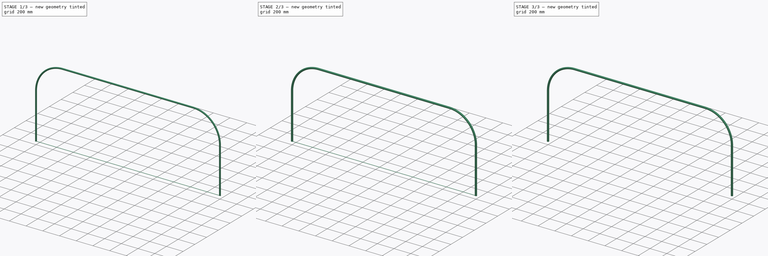
[diagram: build sequence overview — one tinted view per stage of 3, left to right]
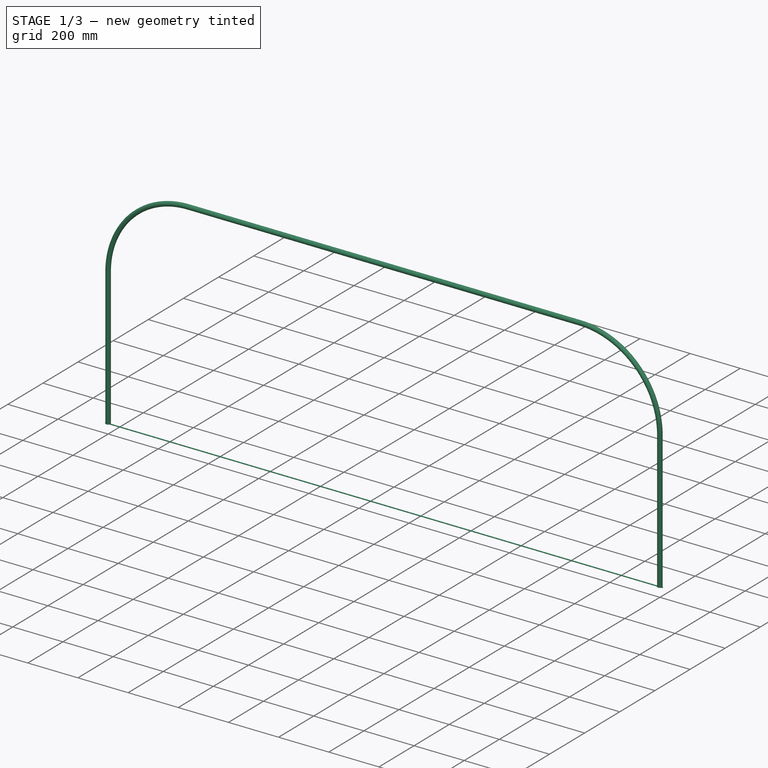
[diagram: stage 1 of 3 — iso view after this stage's code; geometry added in this stage tinted green]
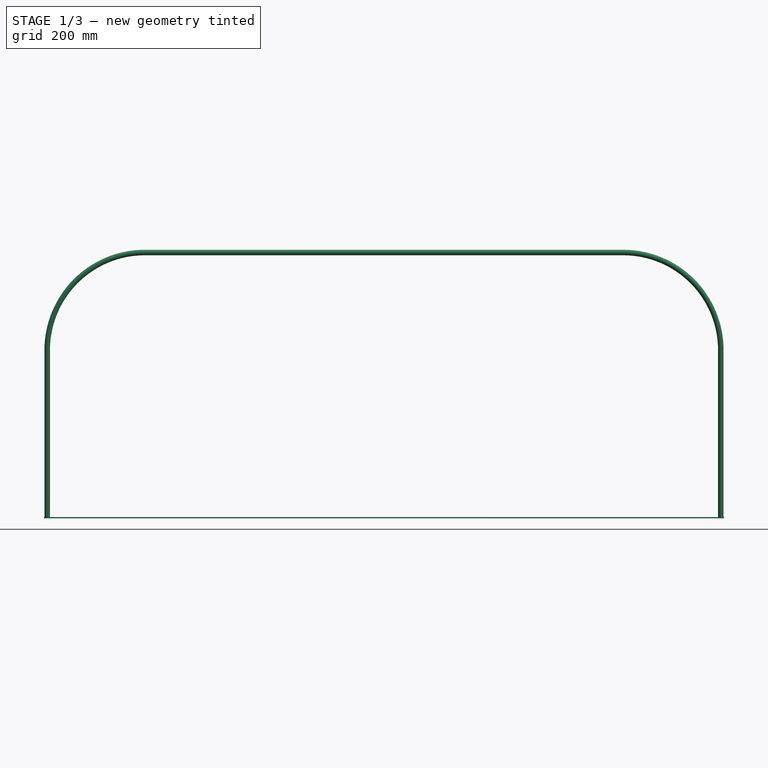
[diagram: stage 1 of 3 — front view after this stage's code; geometry added in this stage tinted green]
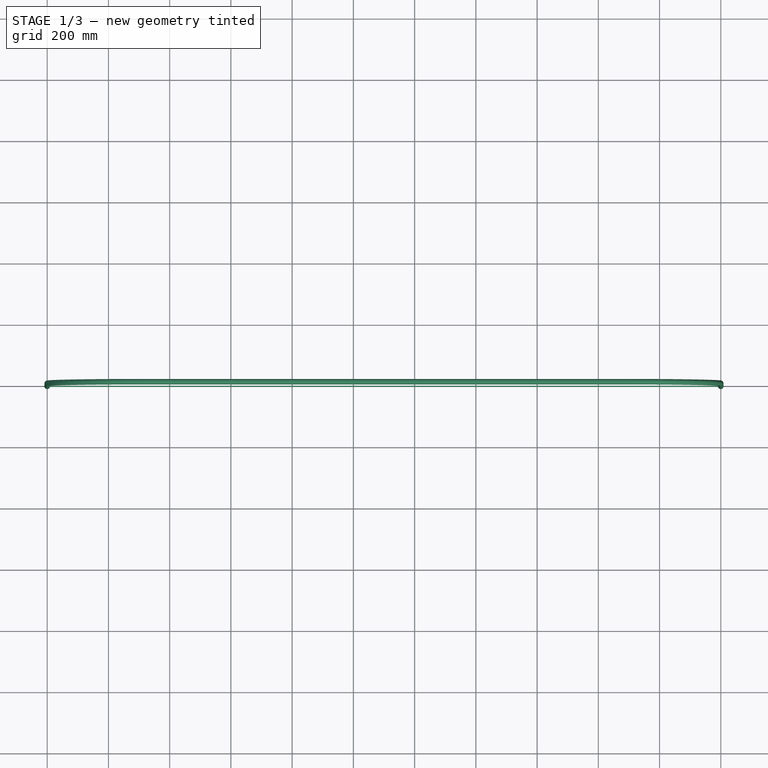
[diagram: stage 1 of 3 — top view after this stage's code; geometry added in this stage tinted green]
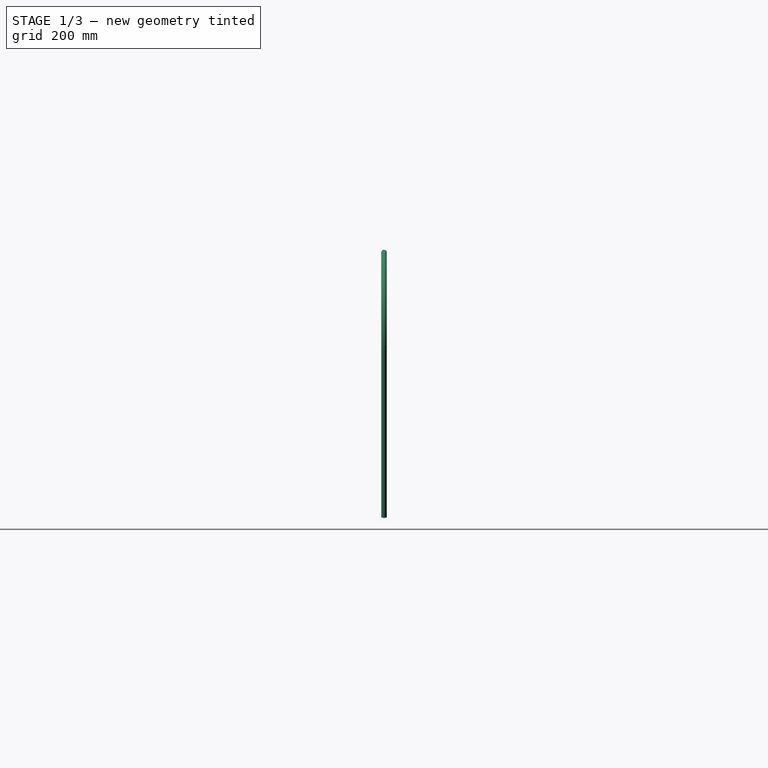
[diagram: stage 1 of 3 — right view after this stage's code; geometry added in this stage tinted green]
FCSTD DOCUMENT  (FreeCAD 0.18.3R)
Label: frame
License: All rights reserved
LicenseURL: http://en.wikipedia.org/wiki/All_rights_reserved
objects: Part::FeaturePython×2, Part::Cut×2, App::Part×1, Sketcher::SketchObject×1, Part::Cylinder×1, PartDesign::FeatureBase×1, PartDesign::Body×1
note: 8 computed .brp shape members not serialized (recipe doc carries the construction recipe); baked Part::Feature solids carry a one-line shape summary decoded from their .brp

FEATURE [Part::FeaturePython] Pipe002  label="Pipe"  # Arch/BIM object (typed FeaturePython)
  Base = -> Sketch
  Diameter = 18
  HorizontalArea = 0
  IfcRole = 98
  Length = 3658.56
  MoveWithHost = false
  OffsetEnd = 0
  OffsetStart = 0
  PerimeterLength = 0
  VerticalArea = 0
FEATURE [Part::Cylinder] Cylinder
  Angle = 360
  AttacherType = Attacher::AttachEngine3D
  Height = 2222
  Placement = pos=(-11,0,0) rot=(0,1,0;1.5708rad)
  Radius = 2
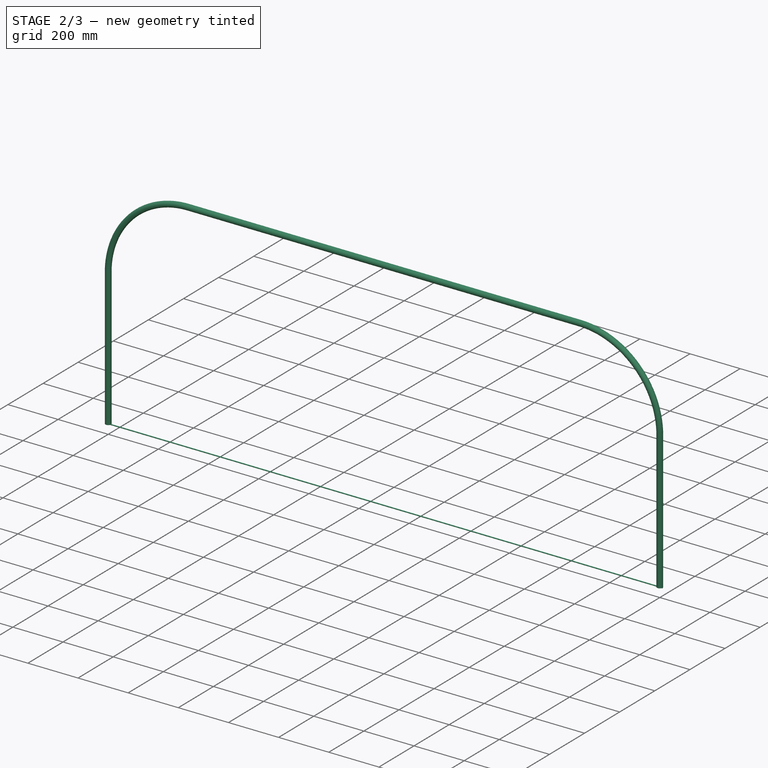
[diagram: stage 2 of 3 — iso view after this stage's code; geometry added in this stage tinted green]
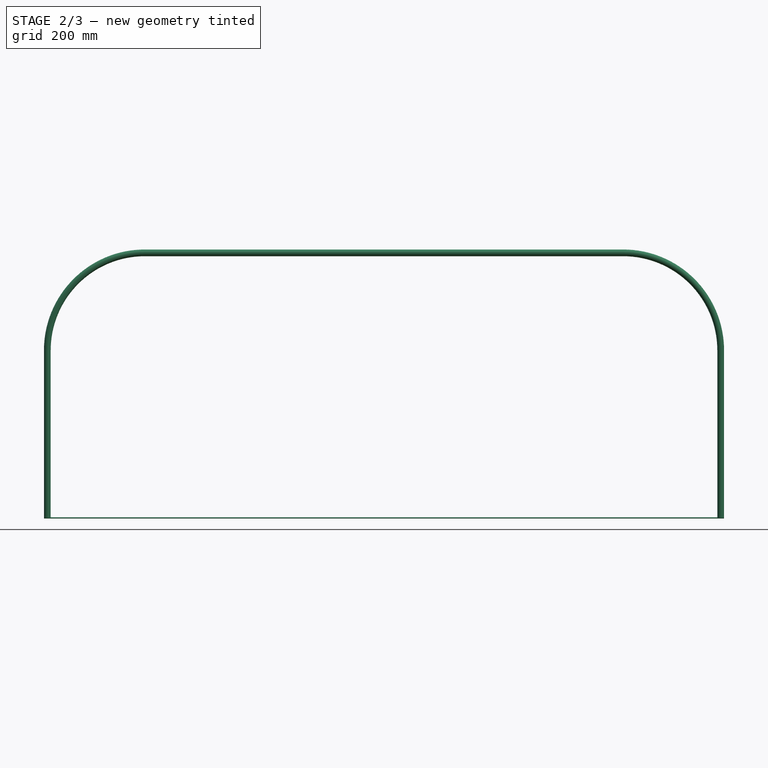
[diagram: stage 2 of 3 — front view after this stage's code; geometry added in this stage tinted green]
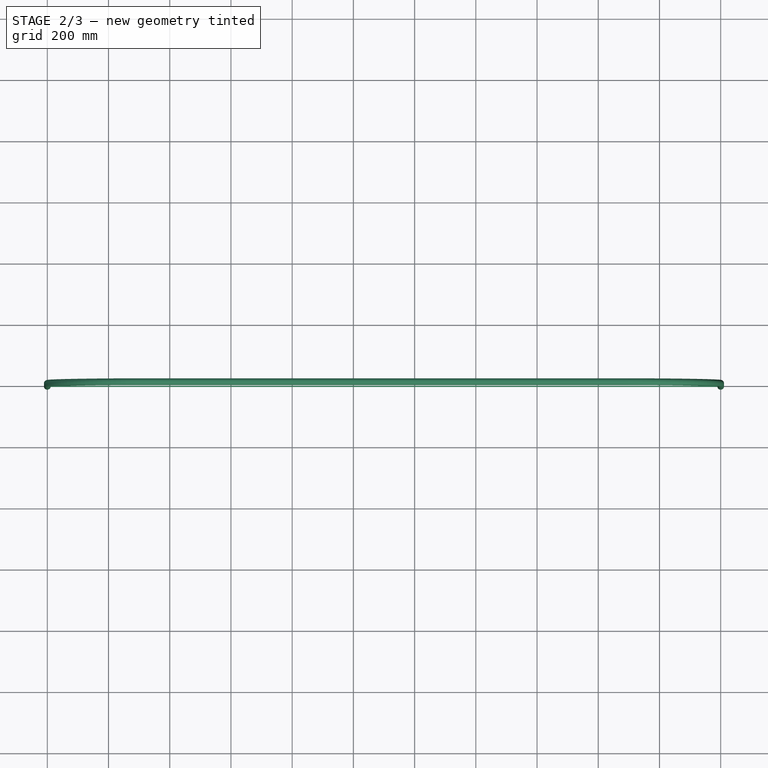
[diagram: stage 2 of 3 — top view after this stage's code; geometry added in this stage tinted green]
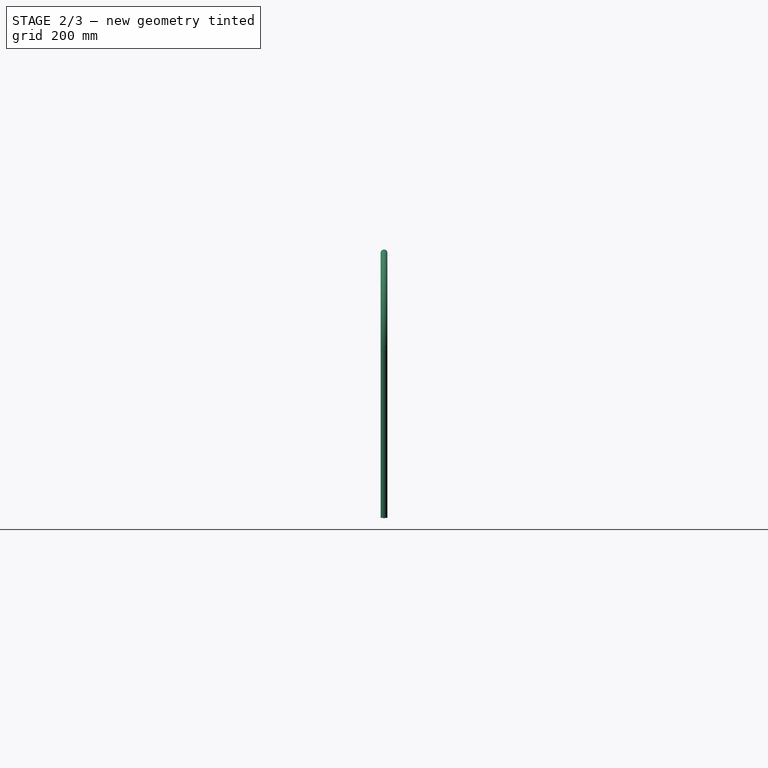
[diagram: stage 2 of 3 — right view after this stage's code; geometry added in this stage tinted green]
FEATURE [App::Part] Part
  Origin = -> Origin
FEATURE [Sketcher::SketchObject] Sketch
  MapMode = 5
  Placement = pos=(0,0,0) rot=(1,0,0;1.5708rad)
  Support = -> [XZ_Plane001]
  sketch-geometry (7):
    g0: LineSegment StartX=0 StartY=0 StartZ=0 EndX=0 EndY=547.423 EndZ=0
    g1: ArcOfCircle CenterX=318.602 CenterY=547.423 CenterZ=0 NormalX=0 NormalY=0 NormalZ=1 AngleXU=0 Radius=318.602 StartAngle=1.5708 EndAngle=3.14159
    g2: LineSegment [constr] StartX=318.602 StartY=866.025 StartZ=0 EndX=1100 EndY=866.025 EndZ=0
    g3: LineSegment [constr] StartX=1100 StartY=866.025 StartZ=0 EndX=1881.4 EndY=866.025 EndZ=0
    g4: LineSegment StartX=2200 StartY=547.423 StartZ=0 EndX=2200 EndY=0 EndZ=0
    g5: ArcOfCircle CenterX=1881.4 CenterY=547.423 CenterZ=0 NormalX=0 NormalY=0 NormalZ=1 AngleXU=0 Radius=318.602 StartAngle=0 EndAngle=1.5708
    g6: LineSegment StartX=318.602 StartY=866.025 StartZ=0 EndX=1881.4 EndY=866.025 EndZ=0
  constraints (17):
    c: Tangent(g0,g1) = 1.5708
    c: Vertical(g0)
    c: Tangent(g1,g2) = 1.5708
    c: Distance(g0,g2) = 1400  'size'
    c: Horizontal(g2)
    c: Coincident(g0,g-1)
    c: Coincident(g3,g2)
    c: Horizontal(g3)
    c: Vertical(g4)
    c: DistanceY(g0,g4) = 0
    c: Tangent(g3,g5) = 1.5708
    c: Tangent(g4,g5) = 1.5708
    c: Equal(g5,g1)
    c: Equal(g3,g2)
    c: Coincident(g6,g1)
    c: Coincident(g6,g5)
    c: Distance(g4,g0) = 2200
FEATURE [Part::FeaturePython] Pipe  label="PipeLeft"  # Arch/BIM object (typed FeaturePython)
  Base = -> Sketch
  Diameter = 22
  HorizontalArea = 0
  IfcRole = 98
  Length = 3658.56
  MoveWithHost = false
  OffsetEnd = 0
  OffsetStart = 0
  PerimeterLength = 0
  VerticalArea = 0
FEATURE [Part::Cut] Cut
  Base = -> Pipe
  Tool = -> Pipe002
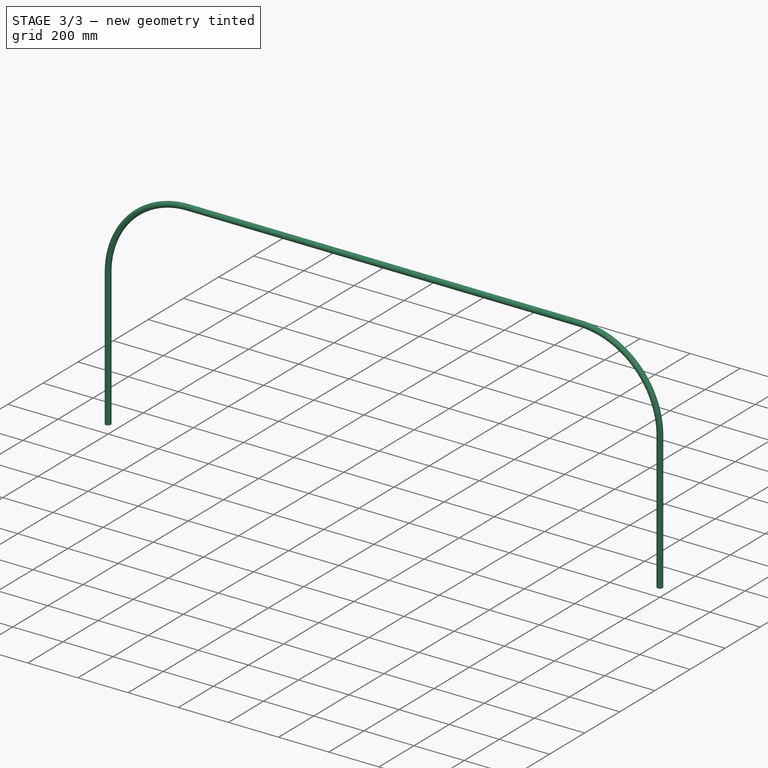
[diagram: stage 3 of 3 — iso view after this stage's code; geometry added in this stage tinted green]
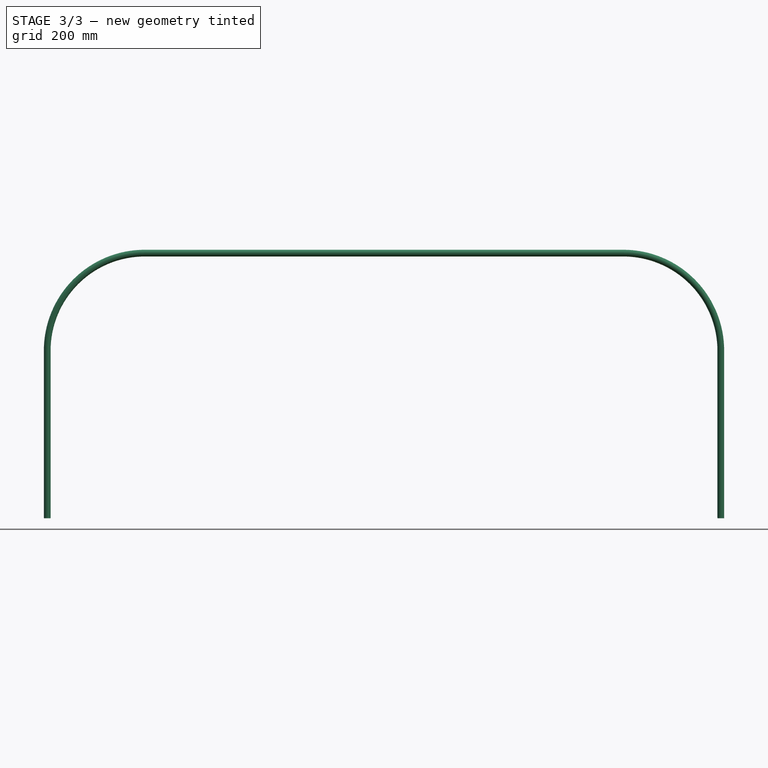
[diagram: stage 3 of 3 — front view after this stage's code; geometry added in this stage tinted green]
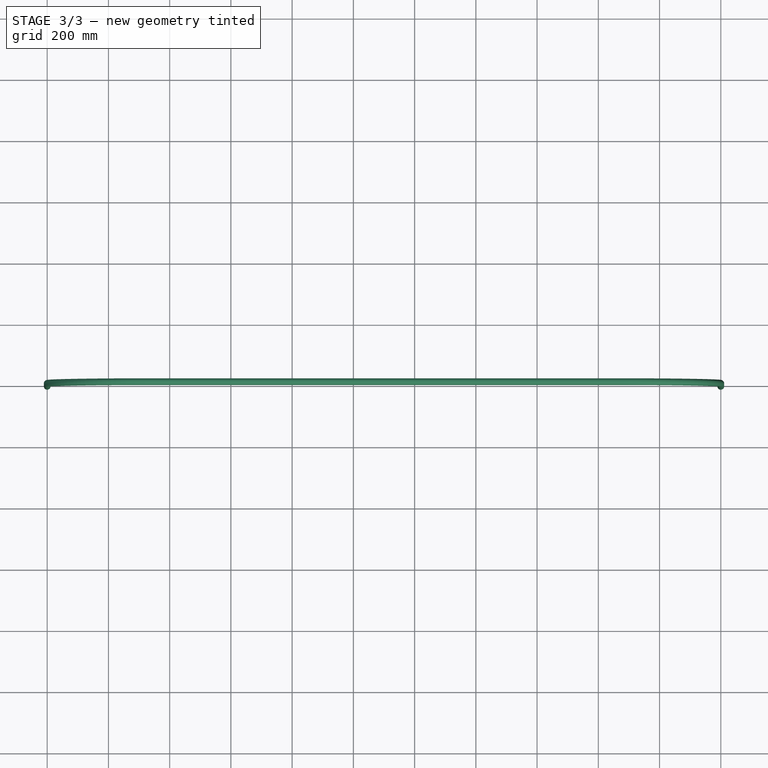
[diagram: stage 3 of 3 — top view after this stage's code; geometry added in this stage tinted green]
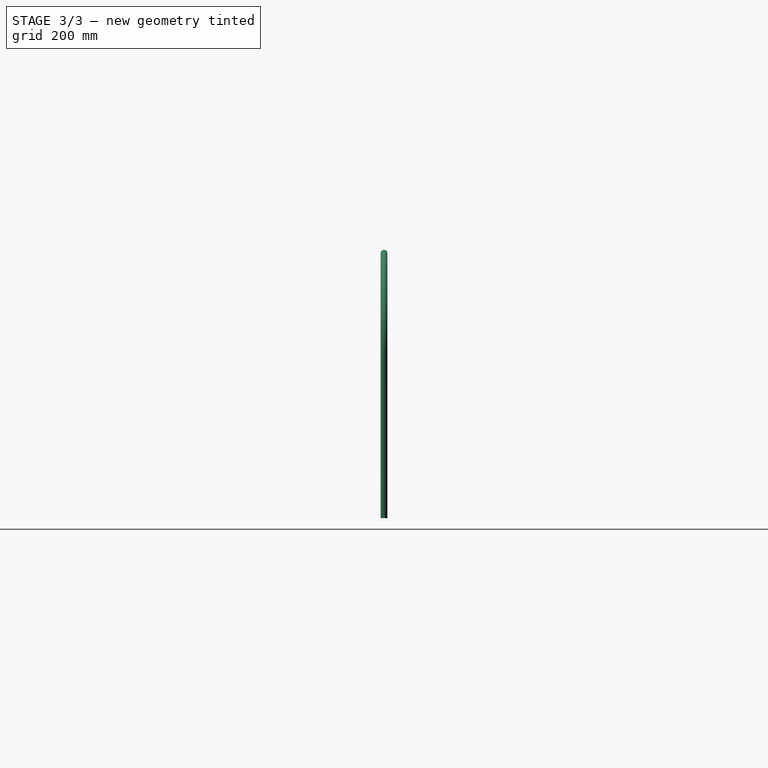
[diagram: stage 3 of 3 — right view after this stage's code; geometry added in this stage tinted green]
FEATURE [Part::Cut] Cut001
  Base = -> Cut
  Tool = -> Cylinder
FEATURE [PartDesign::FeatureBase] BaseFeature
  BaseFeature = -> Cut001
FEATURE [PartDesign::Body] Body
  BaseFeature = -> Cut001
  Group = -> [BaseFeature,Sketch]
  Origin = -> Origin001
  Tip = -> BaseFeature
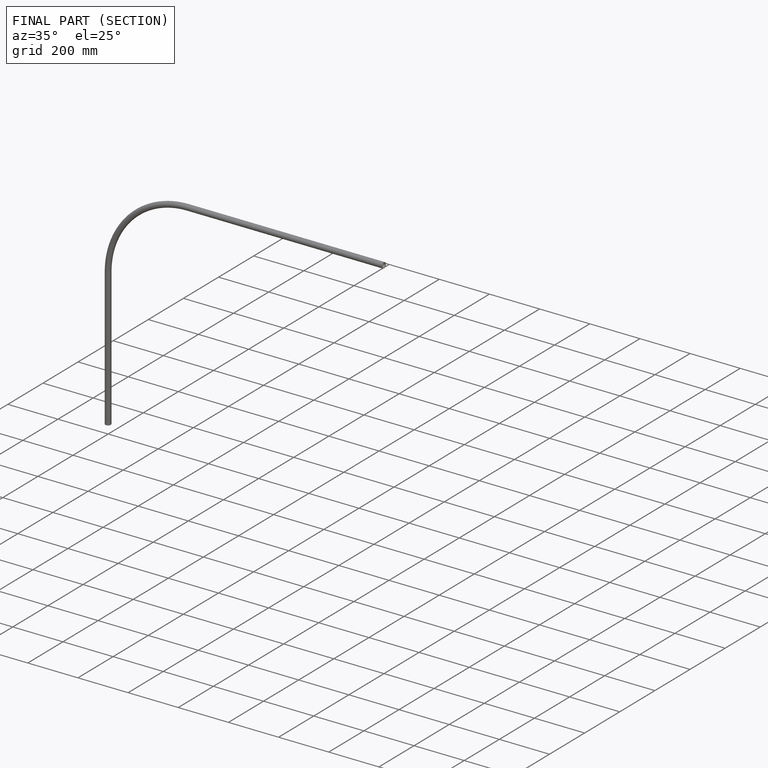
[diagram: finished part — half-section view (interior)]
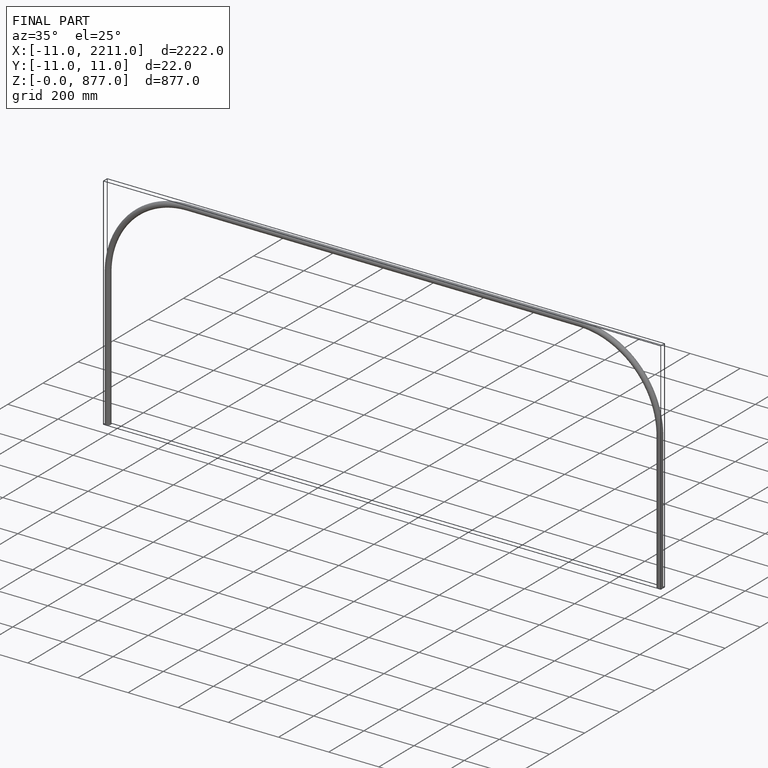
[diagram: finished part — iso view with bounding-box wireframe]
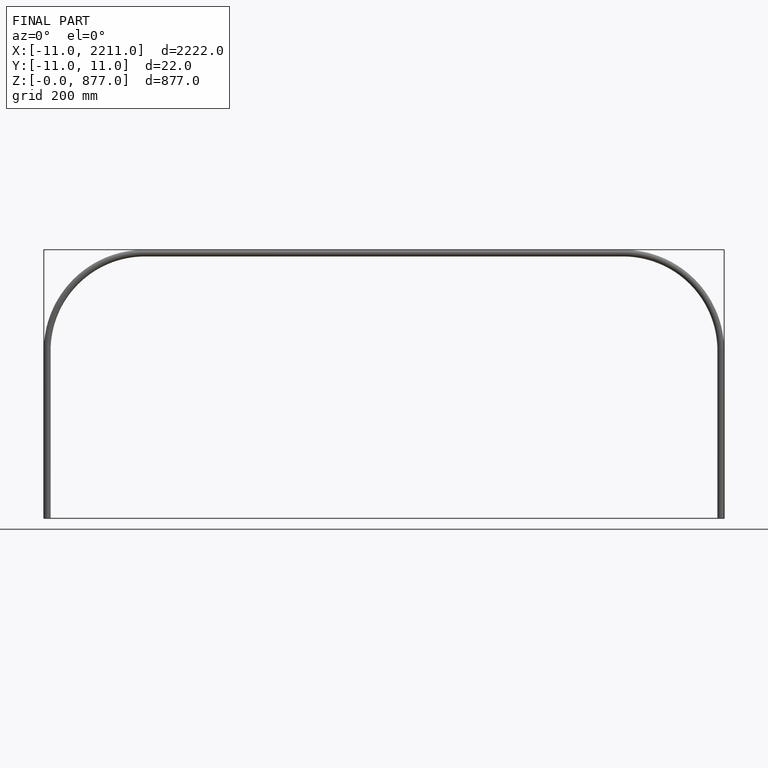
[diagram: finished part — front view with bounding-box wireframe]
